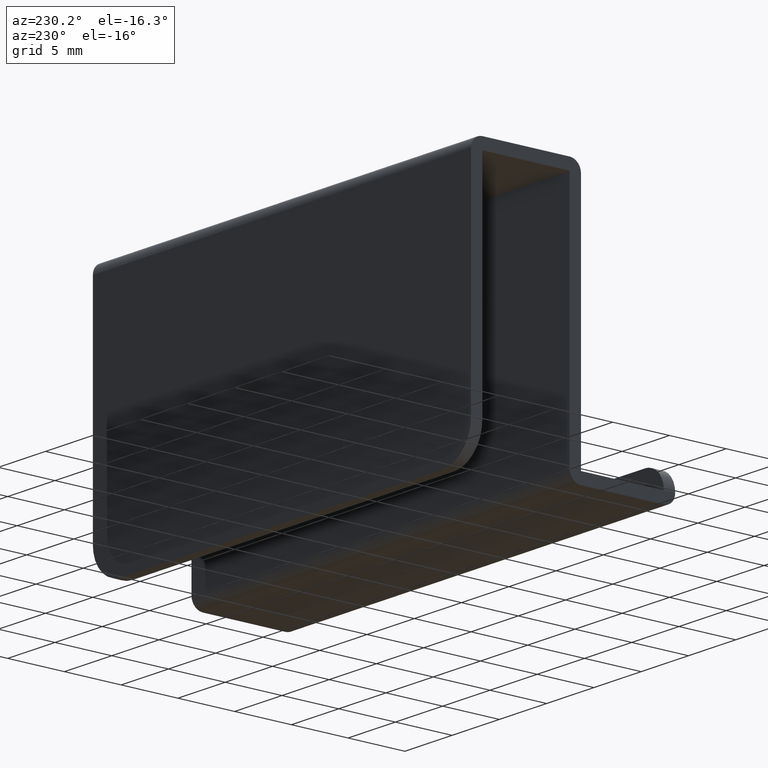
[diagram: clean part render]
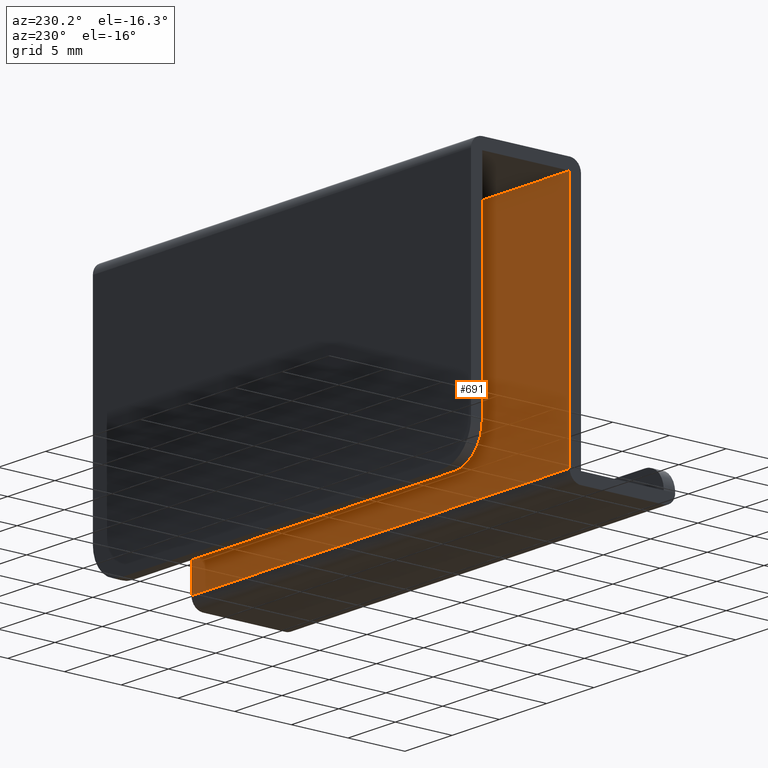
[diagram: same view with one face highlighted and labeled with its STEP entity id]
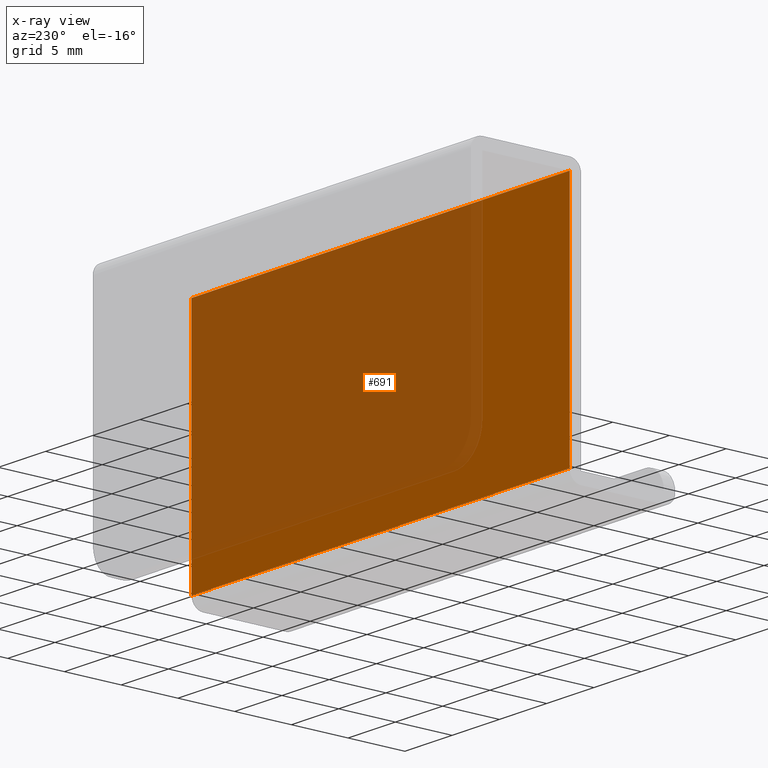
[diagram: x-ray of the same camera — body ghosted, the highlighted face saturated]
A machine part, auxiliary view. The second image highlights one B-rep face of the part: STEP entity #691.
The next image is the same camera in x-ray: the body ghosted, the highlighted face saturated — about 68% of this face is hidden behind the body in this view.
In plain terms, the highlighted face is a freeform B-spline surface patch.
Its self-contained STEP definition (entity closure, byte-faithful):
#361=CARTESIAN_POINT('',(20.0,-8.700011999999999,1.0));
#362=VERTEX_POINT('',#361);
#383=CARTESIAN_POINT('',(-20.0,-8.700011999999999,1.0));
#384=VERTEX_POINT('',#383);
#398=CARTESIAN_POINT('',(20.0,-8.700011999999999,1.0));
#399=CARTESIAN_POINT('',(-20.0,-8.700011999999999,1.0));
#400=QUASI_UNIFORM_CURVE('',1,(#398,#399),.UNSPECIFIED.,.F.,.U.);
#401=EDGE_CURVE('',#362,#384,#400,.T.);
#567=CARTESIAN_POINT('',(-20.0,-8.700011999999999,22.0));
#568=VERTEX_POINT('',#567);
#574=CARTESIAN_POINT('',(-20.0,-8.700011999999999,22.0));
#575=CARTESIAN_POINT('',(-20.0,-8.700011999999999,1.0));
#576=QUASI_UNIFORM_CURVE('',1,(#574,#575),.UNSPECIFIED.,.F.,.U.);
#577=EDGE_CURVE('',#568,#384,#576,.T.);
#608=CARTESIAN_POINT('',(20.0,-8.700011999999999,22.0));
#609=VERTEX_POINT('',#608);
#610=CARTESIAN_POINT('',(20.0,-8.700011999999999,22.0));
#611=CARTESIAN_POINT('',(20.0,-8.700011999999999,1.0));
#612=QUASI_UNIFORM_CURVE('',1,(#610,#611),.UNSPECIFIED.,.F.,.U.);
#613=EDGE_CURVE('',#609,#362,#612,.T.);
#676=CARTESIAN_POINT('',(-21.997999922472239,-8.700011999999999,-0.048949959297925));
#677=CARTESIAN_POINT('',(-21.997999922472239,-8.700011999999999,23.048950522561821));
#678=CARTESIAN_POINT('',(21.998000995355849,-8.700011999999999,-0.048949959297925));
#679=CARTESIAN_POINT('',(21.998000995355849,-8.700011999999999,23.048950522561821));
#680=B_SPLINE_SURFACE_WITH_KNOTS('',1,1,((#676,#678),(#677,#679)),.UNSPECIFIED.,.F.,.F.,.U.,(2,2),(2,2),(0.0,23.097900481859750),(0.0,43.996000917828077),.UNSPECIFIED.);
#681=ORIENTED_EDGE('',*,*,#613,.T.);
#682=ORIENTED_EDGE('',*,*,#401,.T.);
#683=ORIENTED_EDGE('',*,*,#577,.F.);
#684=CARTESIAN_POINT('',(20.0,-8.700011999999999,22.0));
#685=CARTESIAN_POINT('',(-20.0,-8.700011999999999,22.0));
#686=QUASI_UNIFORM_CURVE('',1,(#684,#685),.UNSPECIFIED.,.F.,.U.);
#687=EDGE_CURVE('',#609,#568,#686,.T.);
#688=ORIENTED_EDGE('',*,*,#687,.F.);
#689=EDGE_LOOP('',(#681,#682,#683,#688));
#690=FACE_OUTER_BOUND('',#689,.T.);
#691=ADVANCED_FACE('',(#690),#680,.T.);